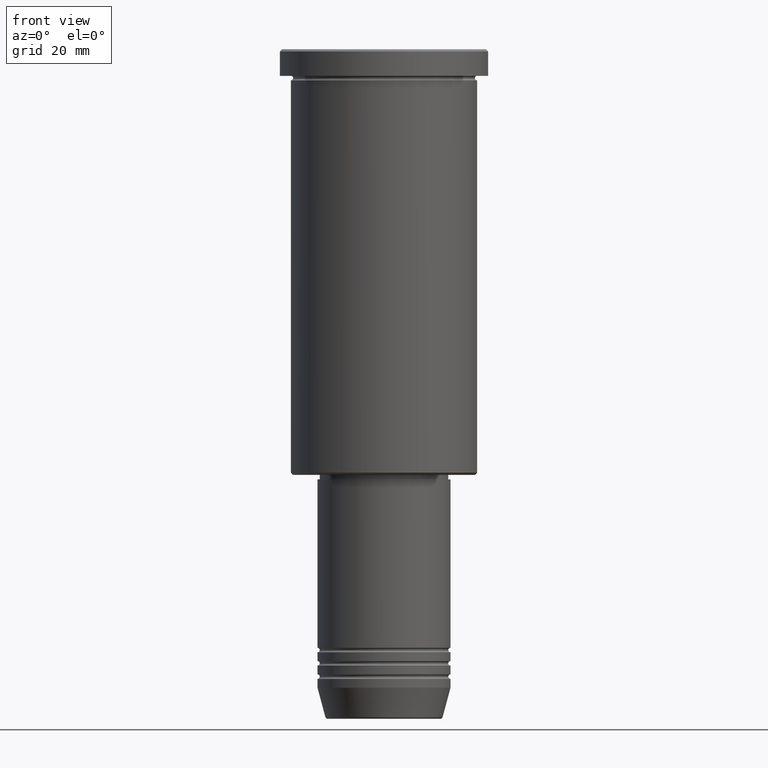
[diagram: clean part render]
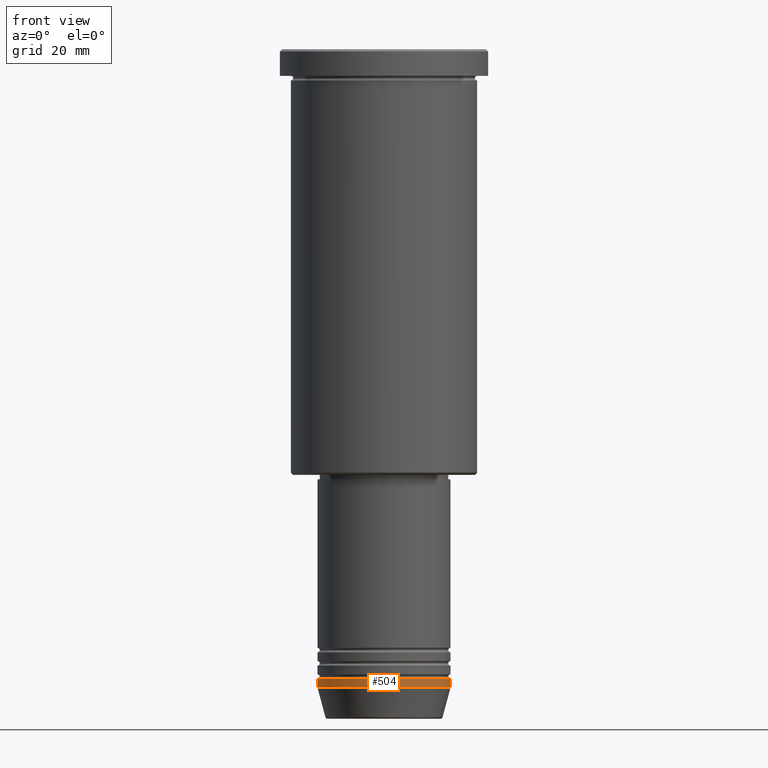
[diagram: same view with one face highlighted and labeled with its STEP entity id]
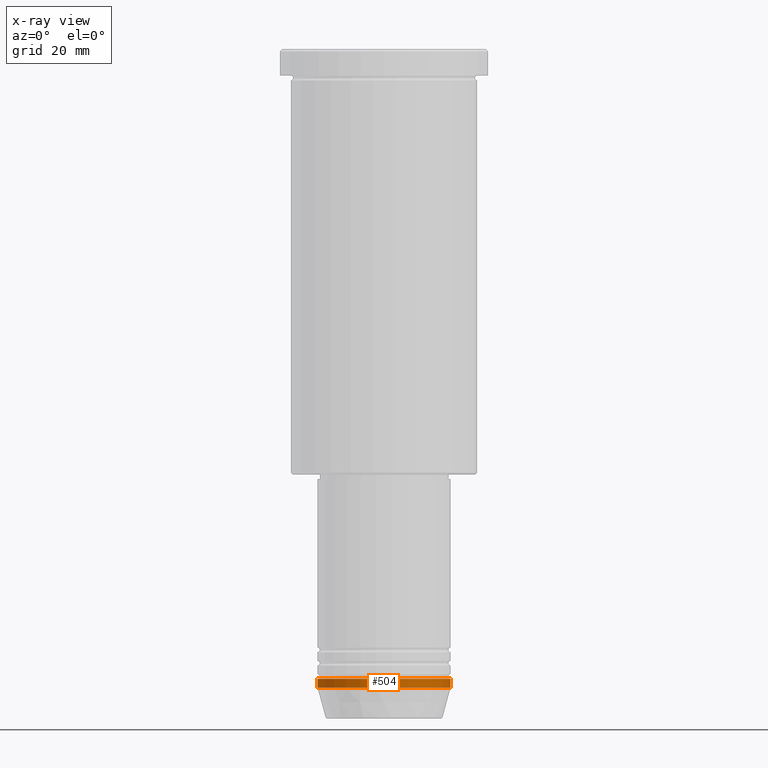
[diagram: x-ray of the same camera — body ghosted, the highlighted face saturated]
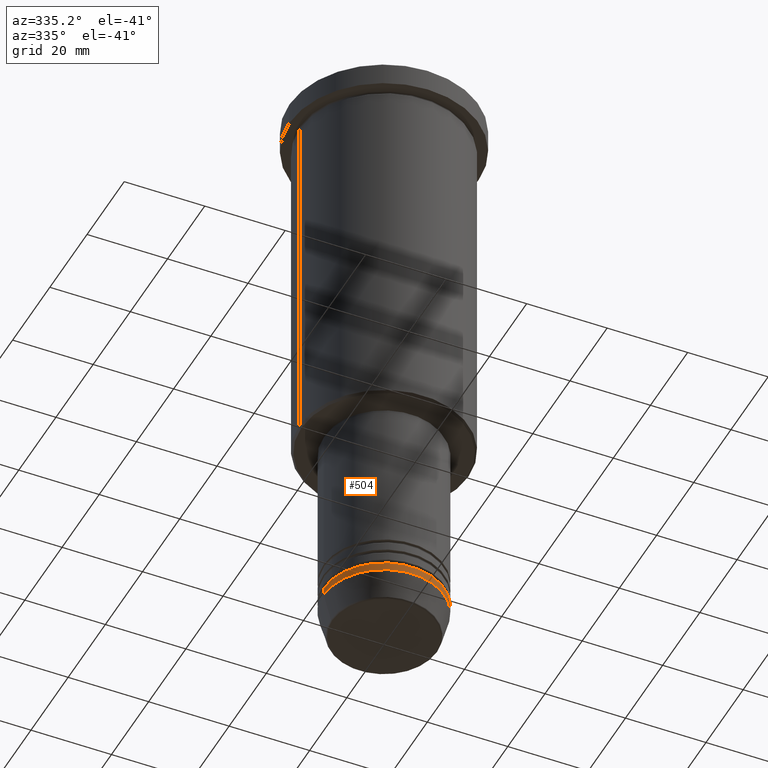
[diagram: same view with one face highlighted and labeled with its STEP entity id]
A machine part, front view. The second image highlights one B-rep face of the part: STEP entity #504.
The next image is the same camera in x-ray: the body ghosted, the highlighted face saturated — about 0% of this face is hidden behind the body in this view.
A second angle (auxiliary view) of the same face is appended — the face is thin or edge-on in the first view.
In plain terms, the highlighted cylindrical surface (partial cylindrical patch) has radius 15 mm, axis along (-0, -0, 1).
Its self-contained STEP definition (entity closure, byte-faithful):
#2 = EDGE_CURVE ( 'NONE', #724, #711, #452, .T. ) ;
#11 = DIRECTION ( 'NONE',  ( -0.000000000000000000, -0.000000000000000000, 1.000000000000000000 ) ) ;
#64 = CARTESIAN_POINT ( 'NONE',  ( 15.00000000000000000, 0.000000000000000000, -144.0000000000000284 ) ) ;
#77 = CARTESIAN_POINT ( 'NONE',  ( 15.00000000000000000, 0.000000000000000000, -142.0000000000000284 ) ) ;
#90 = CIRCLE ( 'NONE', #553, 15.00000000000000000 ) ;
#95 = DIRECTION ( 'NONE',  ( -0.000000000000000000, -0.000000000000000000, 1.000000000000000000 ) ) ;
#102 = CARTESIAN_POINT ( 'NONE',  ( 0.000000000000000000, 0.000000000000000000, 0.000000000000000000 ) ) ;
#108 = CARTESIAN_POINT ( 'NONE',  ( -15.00000000000000000, 1.836970198721029589E-15, -144.0000000000000284 ) ) ;
#181 = VECTOR ( 'NONE', #1085, 1000.000000000000000 ) ;
#264 = ORIENTED_EDGE ( 'NONE', *, *, #818, .F. ) ;
#293 = ORIENTED_EDGE ( 'NONE', *, *, #871, .F. ) ;
#331 = EDGE_LOOP ( 'NONE', ( #293, #1030, #556, #264 ) ) ;
#445 = CARTESIAN_POINT ( 'NONE',  ( 15.00000000000000000, 0.000000000000000000, 0.000000000000000000 ) ) ;
#452 = LINE ( 'NONE', #445, #181 ) ;
#466 = EDGE_CURVE ( 'NONE', #514, #724, #476, .T. ) ;
#470 = DIRECTION ( 'NONE',  ( 1.000000000000000000, 0.000000000000000000, 0.000000000000000000 ) ) ;
#476 = CIRCLE ( 'NONE', #1118, 15.00000000000000000 ) ;
#504 = ADVANCED_FACE ( 'NONE', ( #566 ), #559, .T. ) ;
#514 = VERTEX_POINT ( 'NONE', #108 ) ;
#553 = AXIS2_PLACEMENT_3D ( 'NONE', #1092, #95, #1097 ) ;
#556 = ORIENTED_EDGE ( 'NONE', *, *, #2, .T. ) ;
#559 = CYLINDRICAL_SURFACE ( 'NONE', #861, 15.00000000000000000 ) ;
#566 = FACE_OUTER_BOUND ( 'NONE', #331, .T. ) ;
#711 = VERTEX_POINT ( 'NONE', #77 ) ;
#724 = VERTEX_POINT ( 'NONE', #64 ) ;
#733 = CARTESIAN_POINT ( 'NONE',  ( 0.000000000000000000, 0.000000000000000000, -144.0000000000000284 ) ) ;
#740 = DIRECTION ( 'NONE',  ( -0.000000000000000000, -0.000000000000000000, 1.000000000000000000 ) ) ;
#747 = LINE ( 'NONE', #753, #1046 ) ;
#753 = CARTESIAN_POINT ( 'NONE',  ( -15.00000000000000000, 1.836970198721029589E-15, 0.000000000000000000 ) ) ;
#818 = EDGE_CURVE ( 'NONE', #1077, #711, #90, .T. ) ;
#837 = DIRECTION ( 'NONE',  ( -0.000000000000000000, -0.000000000000000000, 1.000000000000000000 ) ) ;
#861 = AXIS2_PLACEMENT_3D ( 'NONE', #102, #11, #470 ) ;
#871 = EDGE_CURVE ( 'NONE', #514, #1077, #747, .T. ) ;
#974 = CARTESIAN_POINT ( 'NONE',  ( -15.00000000000000000, 1.836970198721029589E-15, -142.0000000000000284 ) ) ;
#1030 = ORIENTED_EDGE ( 'NONE', *, *, #466, .T. ) ;
#1046 = VECTOR ( 'NONE', #740, 1000.000000000000000 ) ;
#1077 = VERTEX_POINT ( 'NONE', #974 ) ;
#1085 = DIRECTION ( 'NONE',  ( -0.000000000000000000, -0.000000000000000000, 1.000000000000000000 ) ) ;
#1088 = DIRECTION ( 'NONE',  ( 1.000000000000000000, 0.000000000000000000, 0.000000000000000000 ) ) ;
#1092 = CARTESIAN_POINT ( 'NONE',  ( 0.000000000000000000, 0.000000000000000000, -142.0000000000000284 ) ) ;
#1097 = DIRECTION ( 'NONE',  ( 1.000000000000000000, 0.000000000000000000, 0.000000000000000000 ) ) ;
#1118 = AXIS2_PLACEMENT_3D ( 'NONE', #733, #837, #1088 ) ;